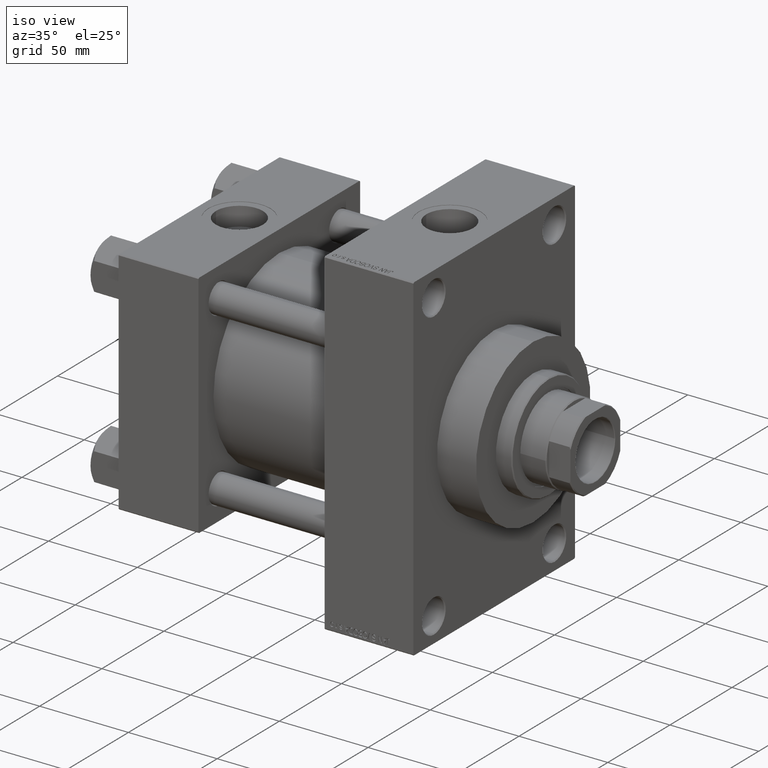
[diagram: clean part render]
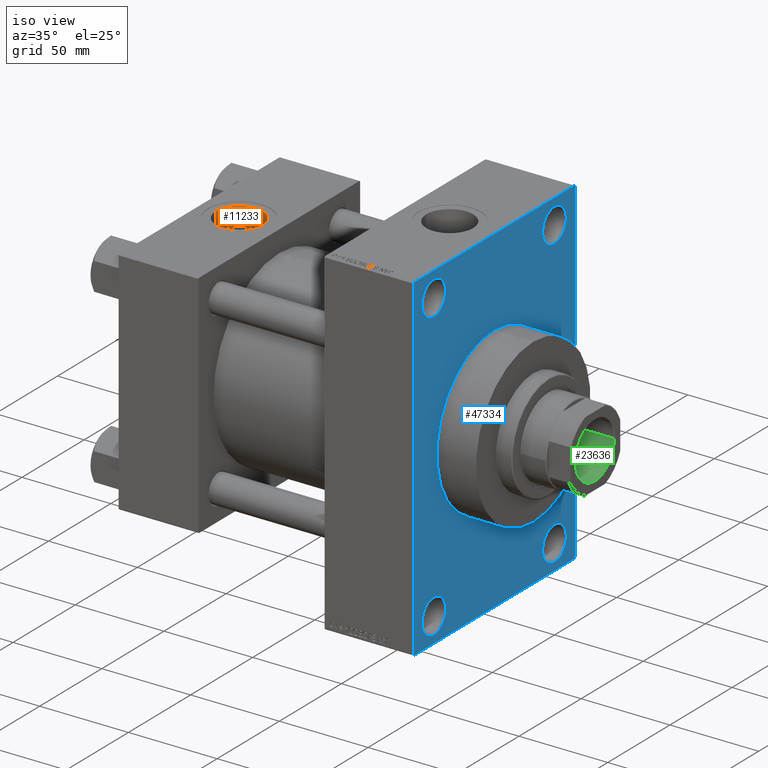
[diagram: same view with three faces highlighted in distinct colors, each labeled with its STEP entity id]
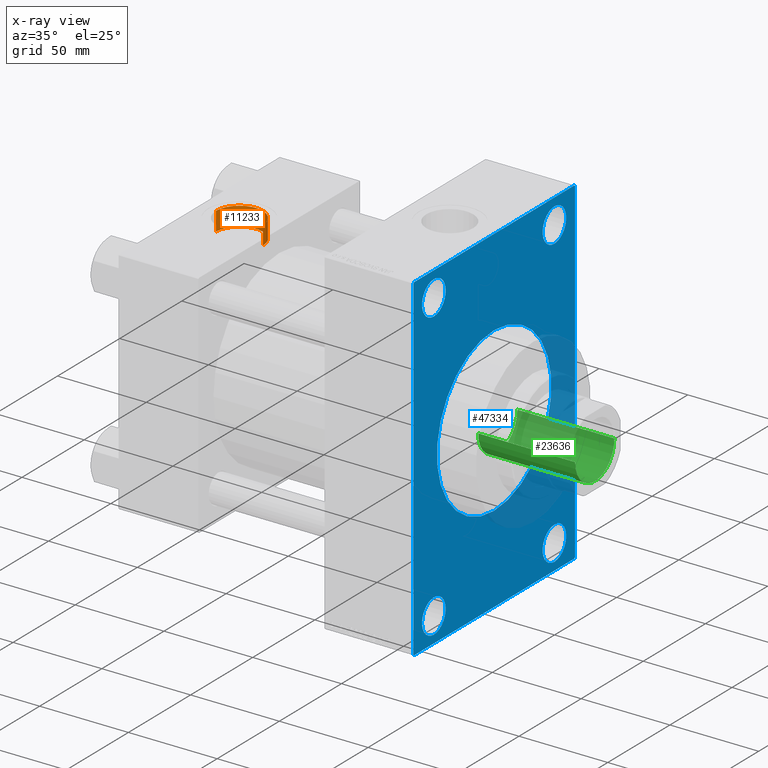
[diagram: x-ray of the same camera — body ghosted, the three highlighted faces saturated]
A machine part, iso view with three faces highlighted in distinct colors.
The next image is the same camera in x-ray (body ghosted, the three faces saturated) — at least one of them is partly hidden behind the body in this view.
Their STEP definitions:

[orange] entity #11233 — the highlighted cylindrical surface (edge-blend (fillet) strip) has radius 13.22 mm, axis along (0, 0, 1).
#1584 = CARTESIAN_POINT ( 'NONE',  ( 9.279999999999994031, -1.399352821531846349E-14, 64.79999999999999716 ) ) ;
#4824 = LINE ( 'NONE', #27982, #33986 ) ;
#7813 = VERTEX_POINT ( 'NONE', #45031 ) ;
#8083 = DIRECTION ( 'NONE',  ( 1.000000000000000000, 0.000000000000000000, 0.000000000000000000 ) ) ;
#8130 = CARTESIAN_POINT ( 'NONE',  ( 35.71999999999999886, -1.561251128379126385E-14, 64.79999999999999716 ) ) ;
#8537 = DIRECTION ( 'NONE',  ( 1.000000000000000000, 0.000000000000000000, 0.000000000000000000 ) ) ;
#10890 = VERTEX_POINT ( 'NONE', #1584 ) ;
#11233 = ADVANCED_FACE ( 'NONE', ( #11368 ), #49654, .F. ) ;
#11368 = FACE_OUTER_BOUND ( 'NONE', #43944, .T. ) ;
#11848 = EDGE_CURVE ( 'NONE', #21292, #7813, #27459, .T. ) ;
#15272 = CARTESIAN_POINT ( 'NONE',  ( 22.50000000000000000, -1.561251128379126385E-14, 54.19999999999999574 ) ) ;
#16085 = CARTESIAN_POINT ( 'NONE',  ( 22.50000000000000000, -1.561251128379126385E-14, 64.79999999999999716 ) ) ;
#18593 = ORIENTED_EDGE ( 'NONE', *, *, #48159, .T. ) ;
#19736 = ORIENTED_EDGE ( 'NONE', *, *, #11848, .F. ) ;
#20411 = DIRECTION ( 'NONE',  ( -0.000000000000000000, -0.000000000000000000, 1.000000000000000000 ) ) ;
#21292 = VERTEX_POINT ( 'NONE', #38919 ) ;
#27231 = DIRECTION ( 'NONE',  ( -0.000000000000000000, -0.000000000000000000, 1.000000000000000000 ) ) ;
#27459 = CIRCLE ( 'NONE', #32267, 13.22000000000000242 ) ;
#27982 = CARTESIAN_POINT ( 'NONE',  ( 9.279999999999994031, -1.399352821531846349E-14, 54.19999999999999574 ) ) ;
#31084 = EDGE_CURVE ( 'NONE', #7813, #10890, #4824, .T. ) ;
#31242 = VECTOR ( 'NONE', #20411, 1000.000000000000000 ) ;
#31423 = EDGE_CURVE ( 'NONE', #33973, #10890, #31578, .T. ) ;
#31452 = DIRECTION ( 'NONE',  ( 0.000000000000000000, 0.000000000000000000, 1.000000000000000000 ) ) ;
#31578 = CIRCLE ( 'NONE', #35600, 13.22000000000000242 ) ;
#32267 = AXIS2_PLACEMENT_3D ( 'NONE', #15272, #37687, #44992 ) ;
#33012 = AXIS2_PLACEMENT_3D ( 'NONE', #42578, #27231, #8083 ) ;
#33973 = VERTEX_POINT ( 'NONE', #8130 ) ;
#33986 = VECTOR ( 'NONE', #43337, 1000.000000000000000 ) ;
#34119 = ORIENTED_EDGE ( 'NONE', *, *, #31423, .T. ) ;
#35600 = AXIS2_PLACEMENT_3D ( 'NONE', #16085, #31452, #8537 ) ;
#36026 = CARTESIAN_POINT ( 'NONE',  ( 35.71999999999999886, -1.561251128379126385E-14, 54.19999999999999574 ) ) ;
#37687 = DIRECTION ( 'NONE',  ( 0.000000000000000000, 0.000000000000000000, 1.000000000000000000 ) ) ;
#38919 = CARTESIAN_POINT ( 'NONE',  ( 35.71999999999999886, -1.561251128379126385E-14, 54.19999999999999574 ) ) ;
#39565 = LINE ( 'NONE', #36026, #31242 ) ;
#42578 = CARTESIAN_POINT ( 'NONE',  ( 22.50000000000000000, -1.561251128379126385E-14, 54.19999999999999574 ) ) ;
#43337 = DIRECTION ( 'NONE',  ( -0.000000000000000000, -0.000000000000000000, 1.000000000000000000 ) ) ;
#43944 = EDGE_LOOP ( 'NONE', ( #47860, #19736, #18593, #34119 ) ) ;
#44992 = DIRECTION ( 'NONE',  ( 1.000000000000000000, 0.000000000000000000, 0.000000000000000000 ) ) ;
#45031 = CARTESIAN_POINT ( 'NONE',  ( 9.279999999999994031, -1.399352821531846349E-14, 54.19999999999999574 ) ) ;
#47860 = ORIENTED_EDGE ( 'NONE', *, *, #31084, .F. ) ;
#48159 = EDGE_CURVE ( 'NONE', #21292, #33973, #39565, .T. ) ;
#49654 = CYLINDRICAL_SURFACE ( 'NONE', #33012, 13.22000000000000242 ) ;

[blue] entity #47334 — the highlighted planar face has unit normal (-1, 0, 0).
#143 = AXIS2_PLACEMENT_3D ( 'NONE', #38290, #12571, #5271 ) ;
#441 = VERTEX_POINT ( 'NONE', #28563 ) ;
#810 = VERTEX_POINT ( 'NONE', #45787 ) ;
#1082 = CARTESIAN_POINT ( 'NONE',  ( 165.9999999999999716, -64.50000000000000000, -95.00000000000002842 ) ) ;
#1244 = CIRCLE ( 'NONE', #26988, 9.500000000000008882 ) ;
#1246 = EDGE_CURVE ( 'NONE', #6468, #810, #22181, .T. ) ;
#2548 = CARTESIAN_POINT ( 'NONE',  ( 165.9999999999999716, 64.50000000000000000, 95.00000000000000000 ) ) ;
#2780 = ORIENTED_EDGE ( 'NONE', *, *, #16353, .T. ) ;
#2782 = CARTESIAN_POINT ( 'NONE',  ( 165.9999999999999716, -48.50000000000000000, -71.50000000000000000 ) ) ;
#2801 = CARTESIAN_POINT ( 'NONE',  ( 165.9999999999999716, 0.000000000000000000, 46.00000000000000000 ) ) ;
#3283 = CARTESIAN_POINT ( 'NONE',  ( 165.9999999999999716, 0.000000000000000000, 0.000000000000000000 ) ) ;
#3468 = EDGE_CURVE ( 'NONE', #48234, #11388, #11958, .T. ) ;
#3474 = ORIENTED_EDGE ( 'NONE', *, *, #33134, .T. ) ;
#3512 = ORIENTED_EDGE ( 'NONE', *, *, #26302, .T. ) ;
#3774 = DIRECTION ( 'NONE',  ( -1.000000000000000000, 0.000000000000000000, -0.000000000000000000 ) ) ;
#3785 = VERTEX_POINT ( 'NONE', #35707 ) ;
#3795 = LINE ( 'NONE', #27696, #27121 ) ;
#4268 = VERTEX_POINT ( 'NONE', #20574 ) ;
#4608 = AXIS2_PLACEMENT_3D ( 'NONE', #6304, #14116, #25706 ) ;
#5271 = DIRECTION ( 'NONE',  ( 0.000000000000000000, 0.000000000000000000, -1.000000000000000000 ) ) ;
#5363 = DIRECTION ( 'NONE',  ( 0.000000000000000000, 0.000000000000000000, 1.000000000000000000 ) ) ;
#5729 = CARTESIAN_POINT ( 'NONE',  ( 165.9999999999999716, 65.00000000000000000, 94.50000000000000000 ) ) ;
#6050 = EDGE_CURVE ( 'NONE', #3785, #25677, #13529, .T. ) ;
#6084 = CIRCLE ( 'NONE', #40660, 9.499999999999925393 ) ;
#6304 = CARTESIAN_POINT ( 'NONE',  ( 165.9999999999999716, 48.50000000000000000, 81.00000000000000000 ) ) ;
#6468 = VERTEX_POINT ( 'NONE', #5729 ) ;
#6603 = VERTEX_POINT ( 'NONE', #20775 ) ;
#7146 = AXIS2_PLACEMENT_3D ( 'NONE', #16855, #9312, #32235 ) ;
#7546 = FACE_BOUND ( 'NONE', #35799, .T. ) ;
#8428 = LINE ( 'NONE', #24039, #17197 ) ;
#8576 = DIRECTION ( 'NONE',  ( 0.000000000000000000, 0.000000000000000000, -1.000000000000000000 ) ) ;
#9312 = DIRECTION ( 'NONE',  ( -1.000000000000000000, -0.000000000000000000, -0.000000000000000000 ) ) ;
#9319 = CIRCLE ( 'NONE', #14167, 9.499999999999925393 ) ;
#9781 = CIRCLE ( 'NONE', #143, 46.00000000000000000 ) ;
#9840 = LINE ( 'NONE', #2548, #48390 ) ;
#10077 = VERTEX_POINT ( 'NONE', #15683 ) ;
#10118 = CARTESIAN_POINT ( 'NONE',  ( 165.9999999999999716, 48.50000000000000000, -81.00000000000000000 ) ) ;
#11018 = DIRECTION ( 'NONE',  ( 0.000000000000000000, 0.000000000000000000, 1.000000000000000000 ) ) ;
#11317 = FACE_BOUND ( 'NONE', #12057, .T. ) ;
#11388 = VERTEX_POINT ( 'NONE', #35768 ) ;
#11519 = CARTESIAN_POINT ( 'NONE',  ( 165.9999999999999716, 48.50000000000000000, -81.00000000000000000 ) ) ;
#11801 = ORIENTED_EDGE ( 'NONE', *, *, #38046, .T. ) ;
#11958 = CIRCLE ( 'NONE', #7146, 9.500000000000008882 ) ;
#12057 = EDGE_LOOP ( 'NONE', ( #18485, #3512 ) ) ;
#12196 = VECTOR ( 'NONE', #29112, 1000.000000000000000 ) ;
#12571 = DIRECTION ( 'NONE',  ( 1.000000000000000000, 0.000000000000000000, 0.000000000000000000 ) ) ;
#12897 = VERTEX_POINT ( 'NONE', #2801 ) ;
#13034 = EDGE_CURVE ( 'NONE', #35551, #12897, #9781, .T. ) ;
#13529 = CIRCLE ( 'NONE', #16764, 9.500000000000008882 ) ;
#13668 = EDGE_LOOP ( 'NONE', ( #38434, #36033, #13713, #48293, #49289, #46042, #2780, #34261 ) ) ;
#13713 = ORIENTED_EDGE ( 'NONE', *, *, #46060, .F. ) ;
#14116 = DIRECTION ( 'NONE',  ( -1.000000000000000000, -0.000000000000000000, -0.000000000000000000 ) ) ;
#14167 = AXIS2_PLACEMENT_3D ( 'NONE', #28782, #29278, #24511 ) ;
#14595 = DIRECTION ( 'NONE',  ( -0.000000000000000000, 0.000000000000000000, 1.000000000000000000 ) ) ;
#15149 = LINE ( 'NONE', #15639, #37596 ) ;
#15619 = CARTESIAN_POINT ( 'NONE',  ( 165.9999999999999716, 48.50000000000000000, -90.50000000000001421 ) ) ;
#15639 = CARTESIAN_POINT ( 'NONE',  ( 165.9999999999999716, 65.00000000000000000, -95.00000000000002842 ) ) ;
#15683 = CARTESIAN_POINT ( 'NONE',  ( 165.9999999999999716, -65.00000000000000000, -94.50000000000001421 ) ) ;
#16277 = EDGE_LOOP ( 'NONE', ( #27251, #41604 ) ) ;
#16353 = EDGE_CURVE ( 'NONE', #6603, #441, #32649, .T. ) ;
#16688 = DIRECTION ( 'NONE',  ( -1.000000000000000000, -0.000000000000000000, -0.000000000000000000 ) ) ;
#16764 = AXIS2_PLACEMENT_3D ( 'NONE', #10118, #16688, #5363 ) ;
#16855 = CARTESIAN_POINT ( 'NONE',  ( 165.9999999999999716, -48.50000000000000000, -81.00000000000000000 ) ) ;
#17197 = VECTOR ( 'NONE', #39399, 1000.000000000000114 ) ;
#17533 = CARTESIAN_POINT ( 'NONE',  ( 165.9999999999999716, 5.633375276077824704E-15, -46.00000000000000000 ) ) ;
#18361 = PLANE ( 'NONE',  #47300 ) ;
#18485 = ORIENTED_EDGE ( 'NONE', *, *, #44311, .T. ) ;
#18564 = DIRECTION ( 'NONE',  ( 0.000000000000000000, 0.000000000000000000, 1.000000000000000000 ) ) ;
#18668 = DIRECTION ( 'NONE',  ( 0.000000000000000000, -1.000000000000000000, 0.000000000000000000 ) ) ;
#18889 = DIRECTION ( 'NONE',  ( 0.000000000000000000, 0.000000000000000000, -1.000000000000000000 ) ) ;
#19124 = DIRECTION ( 'NONE',  ( -0.000000000000000000, 0.7071067811865474617, 0.7071067811865474617 ) ) ;
#19926 = VECTOR ( 'NONE', #18889, 1000.000000000000000 ) ;
#20374 = CIRCLE ( 'NONE', #29229, 9.499999999999925393 ) ;
#20387 = LINE ( 'NONE', #47091, #25340 ) ;
#20561 = CIRCLE ( 'NONE', #49526, 46.00000000000000000 ) ;
#20574 = CARTESIAN_POINT ( 'NONE',  ( 165.9999999999999716, -48.50000000000000000, 90.49999999999992895 ) ) ;
#20775 = CARTESIAN_POINT ( 'NONE',  ( 165.9999999999999716, 64.50000000000000000, 95.00000000000000000 ) ) ;
#22021 = VERTEX_POINT ( 'NONE', #31875 ) ;
#22181 = LINE ( 'NONE', #41315, #19926 ) ;
#22895 = FACE_BOUND ( 'NONE', #30457, .T. ) ;
#23241 = DIRECTION ( 'NONE',  ( -1.000000000000000000, -0.000000000000000000, -0.000000000000000000 ) ) ;
#23835 = VERTEX_POINT ( 'NONE', #33120 ) ;
#24039 = CARTESIAN_POINT ( 'NONE',  ( 165.9999999999999716, -65.00000000000000000, 94.49999999999998579 ) ) ;
#24511 = DIRECTION ( 'NONE',  ( 0.000000000000000000, 0.000000000000000000, 1.000000000000000000 ) ) ;
#25095 = DIRECTION ( 'NONE',  ( 0.000000000000000000, 0.000000000000000000, 1.000000000000000000 ) ) ;
#25340 = VECTOR ( 'NONE', #8576, 1000.000000000000000 ) ;
#25677 = VERTEX_POINT ( 'NONE', #15619 ) ;
#25706 = DIRECTION ( 'NONE',  ( 0.000000000000000000, 0.000000000000000000, 1.000000000000000000 ) ) ;
#26242 = EDGE_CURVE ( 'NONE', #12897, #35551, #20561, .T. ) ;
#26302 = EDGE_CURVE ( 'NONE', #33748, #22021, #6084, .T. ) ;
#26830 = EDGE_CURVE ( 'NONE', #23835, #4268, #9319, .T. ) ;
#26939 = FACE_BOUND ( 'NONE', #30292, .T. ) ;
#26988 = AXIS2_PLACEMENT_3D ( 'NONE', #11519, #30420, #18564 ) ;
#27121 = VECTOR ( 'NONE', #19124, 1000.000000000000114 ) ;
#27251 = ORIENTED_EDGE ( 'NONE', *, *, #49212, .T. ) ;
#27696 = CARTESIAN_POINT ( 'NONE',  ( 165.9999999999999716, 65.00000000000000000, -94.50000000000002842 ) ) ;
#27769 = CARTESIAN_POINT ( 'NONE',  ( 165.9999999999999716, -48.50000000000000000, 81.00000000000000000 ) ) ;
#28563 = CARTESIAN_POINT ( 'NONE',  ( 165.9999999999999716, -64.50000000000000000, 94.99999999999998579 ) ) ;
#28782 = CARTESIAN_POINT ( 'NONE',  ( 165.9999999999999716, -48.50000000000000000, 81.00000000000000000 ) ) ;
#28880 = DIRECTION ( 'NONE',  ( -1.000000000000000000, -0.000000000000000000, -0.000000000000000000 ) ) ;
#28889 = EDGE_CURVE ( 'NONE', #6468, #6603, #9840, .T. ) ;
#29112 = DIRECTION ( 'NONE',  ( 0.000000000000000000, -1.000000000000000000, -1.067522139062650425E-16 ) ) ;
#29229 = AXIS2_PLACEMENT_3D ( 'NONE', #27769, #23241, #35814 ) ;
#29278 = DIRECTION ( 'NONE',  ( -1.000000000000000000, -0.000000000000000000, -0.000000000000000000 ) ) ;
#30292 = EDGE_LOOP ( 'NONE', ( #11801, #38383 ) ) ;
#30420 = DIRECTION ( 'NONE',  ( -1.000000000000000000, -0.000000000000000000, -0.000000000000000000 ) ) ;
#30457 = EDGE_LOOP ( 'NONE', ( #40059, #39484 ) ) ;
#30466 = FACE_BOUND ( 'NONE', #16277, .T. ) ;
#31844 = DIRECTION ( 'NONE',  ( 0.000000000000000000, -0.7071067811865474617, 0.7071067811865474617 ) ) ;
#31875 = CARTESIAN_POINT ( 'NONE',  ( 165.9999999999999716, 48.50000000000000000, 71.50000000000007105 ) ) ;
#31920 = CARTESIAN_POINT ( 'NONE',  ( 165.9999999999999716, -48.50000000000000000, -81.00000000000000000 ) ) ;
#32235 = DIRECTION ( 'NONE',  ( 0.000000000000000000, 0.000000000000000000, 1.000000000000000000 ) ) ;
#32649 = LINE ( 'NONE', #39707, #12196 ) ;
#32739 = VERTEX_POINT ( 'NONE', #34140 ) ;
#33118 = VERTEX_POINT ( 'NONE', #1082 ) ;
#33120 = CARTESIAN_POINT ( 'NONE',  ( 165.9999999999999716, -48.50000000000000000, 71.50000000000007105 ) ) ;
#33134 = EDGE_CURVE ( 'NONE', #4268, #23835, #20374, .T. ) ;
#33748 = VERTEX_POINT ( 'NONE', #47697 ) ;
#33930 = DIRECTION ( 'NONE',  ( 1.000000000000000000, 0.000000000000000000, 0.000000000000000000 ) ) ;
#34140 = CARTESIAN_POINT ( 'NONE',  ( 165.9999999999999716, 64.50000000000000000, -95.00000000000002842 ) ) ;
#34261 = ORIENTED_EDGE ( 'NONE', *, *, #38623, .T. ) ;
#34339 = CIRCLE ( 'NONE', #4608, 9.499999999999925393 ) ;
#34675 = DIRECTION ( 'NONE',  ( -1.000000000000000000, -0.000000000000000000, -0.000000000000000000 ) ) ;
#35551 = VERTEX_POINT ( 'NONE', #17533 ) ;
#35707 = CARTESIAN_POINT ( 'NONE',  ( 165.9999999999999716, 48.50000000000000000, -71.50000000000000000 ) ) ;
#35768 = CARTESIAN_POINT ( 'NONE',  ( 165.9999999999999716, -48.50000000000000000, -90.50000000000001421 ) ) ;
#35799 = EDGE_LOOP ( 'NONE', ( #49676, #3474 ) ) ;
#35814 = DIRECTION ( 'NONE',  ( 0.000000000000000000, 0.000000000000000000, 1.000000000000000000 ) ) ;
#36033 = ORIENTED_EDGE ( 'NONE', *, *, #41461, .T. ) ;
#36086 = CIRCLE ( 'NONE', #42525, 9.500000000000008882 ) ;
#37596 = VECTOR ( 'NONE', #18668, 1000.000000000000000 ) ;
#38046 = EDGE_CURVE ( 'NONE', #25677, #3785, #1244, .T. ) ;
#38264 = FACE_OUTER_BOUND ( 'NONE', #13668, .T. ) ;
#38290 = CARTESIAN_POINT ( 'NONE',  ( 165.9999999999999716, 0.000000000000000000, 0.000000000000000000 ) ) ;
#38383 = ORIENTED_EDGE ( 'NONE', *, *, #6050, .T. ) ;
#38434 = ORIENTED_EDGE ( 'NONE', *, *, #40363, .T. ) ;
#38623 = EDGE_CURVE ( 'NONE', #441, #44229, #8428, .T. ) ;
#39399 = DIRECTION ( 'NONE',  ( -0.000000000000000000, -0.7071067811865474617, -0.7071067811865474617 ) ) ;
#39484 = ORIENTED_EDGE ( 'NONE', *, *, #13034, .F. ) ;
#39707 = CARTESIAN_POINT ( 'NONE',  ( 165.9999999999999716, 65.00000000000000000, 95.00000000000000000 ) ) ;
#40059 = ORIENTED_EDGE ( 'NONE', *, *, #26242, .F. ) ;
#40363 = EDGE_CURVE ( 'NONE', #44229, #10077, #20387, .T. ) ;
#40660 = AXIS2_PLACEMENT_3D ( 'NONE', #49043, #34675, #11018 ) ;
#41315 = CARTESIAN_POINT ( 'NONE',  ( 165.9999999999999716, 65.00000000000000000, 95.00000000000000000 ) ) ;
#41461 = EDGE_CURVE ( 'NONE', #10077, #33118, #41845, .T. ) ;
#41604 = ORIENTED_EDGE ( 'NONE', *, *, #3468, .T. ) ;
#41845 = LINE ( 'NONE', #48396, #42277 ) ;
#42227 = DIRECTION ( 'NONE',  ( 0.000000000000000000, 0.000000000000000000, -1.000000000000000000 ) ) ;
#42277 = VECTOR ( 'NONE', #48651, 999.9999999999998863 ) ;
#42525 = AXIS2_PLACEMENT_3D ( 'NONE', #31920, #28880, #25095 ) ;
#44229 = VERTEX_POINT ( 'NONE', #48620 ) ;
#44311 = EDGE_CURVE ( 'NONE', #22021, #33748, #34339, .T. ) ;
#44384 = EDGE_CURVE ( 'NONE', #32739, #810, #3795, .T. ) ;
#45760 = CARTESIAN_POINT ( 'NONE',  ( 165.9999999999999716, 0.000000000000000000, 0.000000000000000000 ) ) ;
#45787 = CARTESIAN_POINT ( 'NONE',  ( 165.9999999999999716, 65.00000000000000000, -94.50000000000002842 ) ) ;
#46042 = ORIENTED_EDGE ( 'NONE', *, *, #28889, .T. ) ;
#46060 = EDGE_CURVE ( 'NONE', #32739, #33118, #15149, .T. ) ;
#47091 = CARTESIAN_POINT ( 'NONE',  ( 165.9999999999999716, -65.00000000000000000, 94.99999999999998579 ) ) ;
#47300 = AXIS2_PLACEMENT_3D ( 'NONE', #3283, #3774, #14595 ) ;
#47334 = ADVANCED_FACE ( 'NONE', ( #7546, #30466, #26939, #11317, #22895, #38264 ), #18361, .F. ) ;
#47697 = CARTESIAN_POINT ( 'NONE',  ( 165.9999999999999716, 48.50000000000000000, 90.49999999999992895 ) ) ;
#48234 = VERTEX_POINT ( 'NONE', #2782 ) ;
#48293 = ORIENTED_EDGE ( 'NONE', *, *, #44384, .T. ) ;
#48390 = VECTOR ( 'NONE', #31844, 1000.000000000000114 ) ;
#48396 = CARTESIAN_POINT ( 'NONE',  ( 165.9999999999999716, -64.50000000000000000, -95.00000000000002842 ) ) ;
#48620 = CARTESIAN_POINT ( 'NONE',  ( 165.9999999999999716, -65.00000000000000000, 94.49999999999998579 ) ) ;
#48651 = DIRECTION ( 'NONE',  ( 0.000000000000000000, 0.7071067811865376918, -0.7071067811865574537 ) ) ;
#49043 = CARTESIAN_POINT ( 'NONE',  ( 165.9999999999999716, 48.50000000000000000, 81.00000000000000000 ) ) ;
#49212 = EDGE_CURVE ( 'NONE', #11388, #48234, #36086, .T. ) ;
#49289 = ORIENTED_EDGE ( 'NONE', *, *, #1246, .F. ) ;
#49526 = AXIS2_PLACEMENT_3D ( 'NONE', #45760, #33930, #42227 ) ;
#49676 = ORIENTED_EDGE ( 'NONE', *, *, #26830, .T. ) ;

[green] entity #23636 — the highlighted cylindrical surface (edge-blend (fillet) strip) has radius 15.75 mm, axis along (1, 0, 0).
#1483 = AXIS2_PLACEMENT_3D ( 'NONE', #25812, #41164, #6672 ) ;
#2111 = CARTESIAN_POINT ( 'NONE',  ( -15.74999999999999289, 1.928818708657080556E-15, 177.6999999999999886 ) ) ;
#4091 = VERTEX_POINT ( 'NONE', #2111 ) ;
#6672 = DIRECTION ( 'NONE',  ( 1.000000000000000000, 0.000000000000000000, 0.000000000000000000 ) ) ;
#9428 = EDGE_CURVE ( 'NONE', #47110, #4091, #44227, .T. ) ;
#10439 = AXIS2_PLACEMENT_3D ( 'NONE', #19372, #26713, #30733 ) ;
#11403 = EDGE_CURVE ( 'NONE', #15471, #47110, #47344, .T. ) ;
#13099 = CARTESIAN_POINT ( 'NONE',  ( 15.74999999999999289, 0.000000000000000000, 177.6999999999999886 ) ) ;
#13503 = CARTESIAN_POINT ( 'NONE',  ( -15.74999999999999289, 1.928818708657080556E-15, 178.0000000000000284 ) ) ;
#15471 = VERTEX_POINT ( 'NONE', #34879 ) ;
#17861 = ORIENTED_EDGE ( 'NONE', *, *, #26056, .F. ) ;
#19372 = CARTESIAN_POINT ( 'NONE',  ( 0.000000000000000000, 0.000000000000000000, 177.6999999999999886 ) ) ;
#20291 = CARTESIAN_POINT ( 'NONE',  ( -15.74999999999998934, 1.928818708657080161E-15, 123.0000000000000284 ) ) ;
#22503 = LINE ( 'NONE', #13503, #29416 ) ;
#23636 = ADVANCED_FACE ( 'NONE', ( #27136 ), #34684, .F. ) ;
#23939 = DIRECTION ( 'NONE',  ( -0.000000000000000000, -0.000000000000000000, 1.000000000000000000 ) ) ;
#24704 = ORIENTED_EDGE ( 'NONE', *, *, #11403, .T. ) ;
#25812 = CARTESIAN_POINT ( 'NONE',  ( 0.000000000000000000, 0.000000000000000000, 123.0000000000000284 ) ) ;
#26056 = EDGE_CURVE ( 'NONE', #37189, #4091, #22503, .T. ) ;
#26713 = DIRECTION ( 'NONE',  ( 0.000000000000000000, 0.000000000000000000, 1.000000000000000000 ) ) ;
#27131 = ORIENTED_EDGE ( 'NONE', *, *, #9428, .T. ) ;
#27136 = FACE_OUTER_BOUND ( 'NONE', #34682, .T. ) ;
#27552 = ORIENTED_EDGE ( 'NONE', *, *, #47981, .F. ) ;
#27720 = CARTESIAN_POINT ( 'NONE',  ( 15.74999999999999289, 0.000000000000000000, 178.0000000000000284 ) ) ;
#28821 = CIRCLE ( 'NONE', #1483, 15.74999999999998934 ) ;
#29416 = VECTOR ( 'NONE', #37863, 1000.000000000000000 ) ;
#30733 = DIRECTION ( 'NONE',  ( 1.000000000000000000, 0.000000000000000000, 0.000000000000000000 ) ) ;
#34177 = AXIS2_PLACEMENT_3D ( 'NONE', #38708, #42977, #35673 ) ;
#34682 = EDGE_LOOP ( 'NONE', ( #17861, #27552, #24704, #27131 ) ) ;
#34684 = CYLINDRICAL_SURFACE ( 'NONE', #34177, 15.74999999999999289 ) ;
#34879 = CARTESIAN_POINT ( 'NONE',  ( 15.74999999999998934, 0.000000000000000000, 123.0000000000000284 ) ) ;
#35673 = DIRECTION ( 'NONE',  ( 1.000000000000000000, 0.000000000000000000, 0.000000000000000000 ) ) ;
#37189 = VERTEX_POINT ( 'NONE', #20291 ) ;
#37863 = DIRECTION ( 'NONE',  ( -0.000000000000000000, -0.000000000000000000, 1.000000000000000000 ) ) ;
#38669 = VECTOR ( 'NONE', #23939, 1000.000000000000000 ) ;
#38708 = CARTESIAN_POINT ( 'NONE',  ( 0.000000000000000000, 0.000000000000000000, 178.0000000000000284 ) ) ;
#41164 = DIRECTION ( 'NONE',  ( -0.000000000000000000, -0.000000000000000000, 1.000000000000000000 ) ) ;
#42977 = DIRECTION ( 'NONE',  ( -0.000000000000000000, -0.000000000000000000, 1.000000000000000000 ) ) ;
#44227 = CIRCLE ( 'NONE', #10439, 15.74999999999999289 ) ;
#47110 = VERTEX_POINT ( 'NONE', #13099 ) ;
#47344 = LINE ( 'NONE', #27720, #38669 ) ;
#47981 = EDGE_CURVE ( 'NONE', #15471, #37189, #28821, .T. ) ;